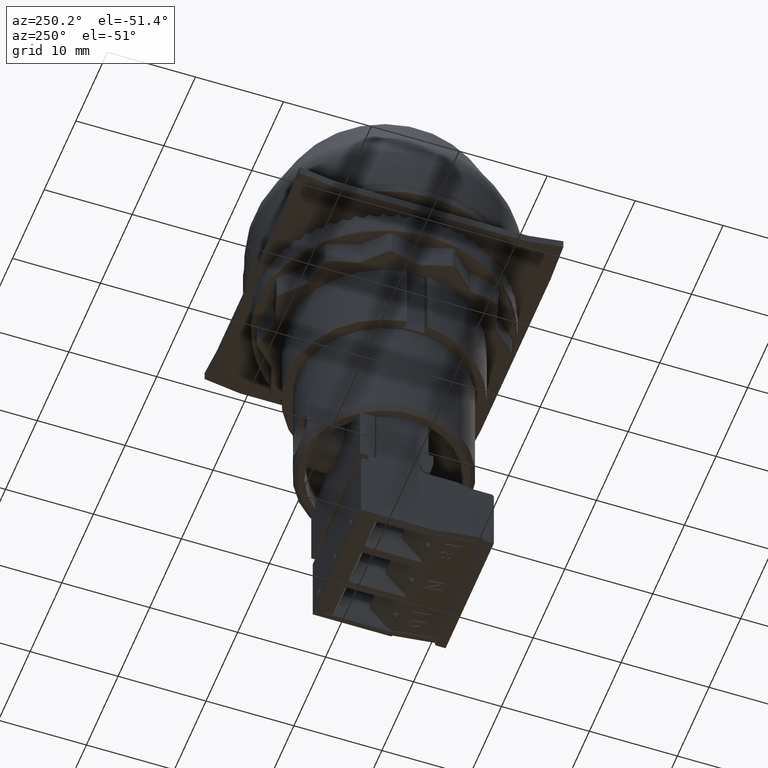
[diagram: clean part render]
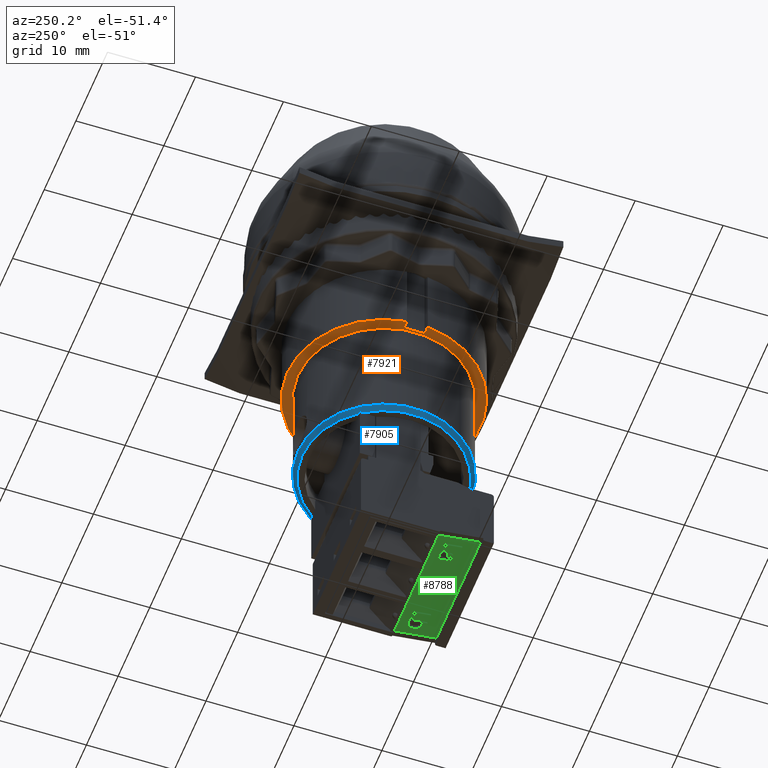
[diagram: same view with three faces highlighted in distinct colors, each labeled with its STEP entity id]
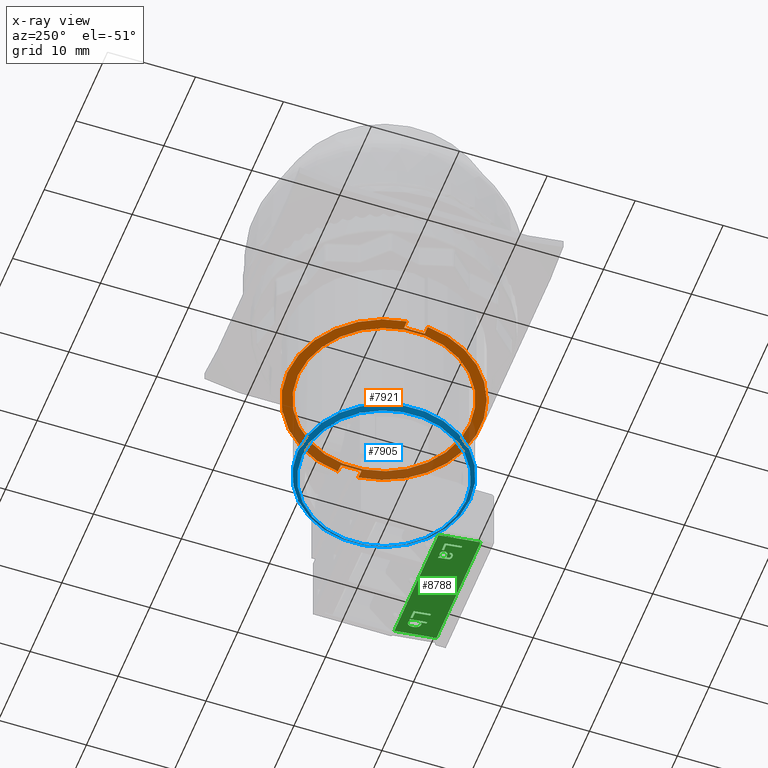
[diagram: x-ray of the same camera — body ghosted, the three highlighted faces saturated]
A machine part, auxiliary view with three faces highlighted in distinct colors.
The next image is the same camera in x-ray (body ghosted, the three faces saturated) — at least one of them is partly hidden behind the body in this view.
Their STEP definitions:

[orange] entity #7921 — the highlighted planar face has unit normal (0, 0, -1).
#3113=LINE('',#37801,#5512);
#3114=LINE('',#37803,#5513);
#3118=LINE('',#37810,#5517);
#3121=LINE('',#37816,#5520);
#3122=LINE('',#37818,#5521);
#3126=LINE('',#37825,#5525);
#5512=VECTOR('',#30555,1.);
#5513=VECTOR('',#30558,1.);
#5517=VECTOR('',#30564,1.);
#5520=VECTOR('',#30569,1.);
#5521=VECTOR('',#30572,1.);
#5525=VECTOR('',#30578,1.);
#7921=ADVANCED_FACE('',(#10179,#10180),#9421,.T.);
#9421=PLANE('',#28133);
#10179=FACE_BOUND('',#10347,.T.);
#10180=FACE_BOUND('',#10348,.T.);
#10347=EDGE_LOOP('',(#12019,#12020,#12021,#12022,#12023,#12024,#12025,#12026));
#10348=EDGE_LOOP('',(#12027));
#12019=ORIENTED_EDGE('',*,*,#22973,.T.);
#12020=ORIENTED_EDGE('',*,*,#22978,.T.);
#12021=ORIENTED_EDGE('',*,*,#22974,.T.);
#12022=ORIENTED_EDGE('',*,*,#22963,.F.);
#12023=ORIENTED_EDGE('',*,*,#22981,.T.);
#12024=ORIENTED_EDGE('',*,*,#22986,.T.);
#12025=ORIENTED_EDGE('',*,*,#22982,.T.);
#12026=ORIENTED_EDGE('',*,*,#22961,.F.);
#12027=ORIENTED_EDGE('',*,*,#22941,.T.);
#20255=VERTEX_POINT('',#37705);
#20269=VERTEX_POINT('',#37775);
#20270=VERTEX_POINT('',#37777);
#20271=VERTEX_POINT('',#37781);
#20272=VERTEX_POINT('',#37782);
#20280=VERTEX_POINT('',#37800);
#20281=VERTEX_POINT('',#37804);
#20284=VERTEX_POINT('',#37815);
#20285=VERTEX_POINT('',#37819);
#22941=EDGE_CURVE('',#20255,#20255,#27080,.T.);
#22961=EDGE_CURVE('',#20269,#20270,#27094,.T.);
#22963=EDGE_CURVE('',#20271,#20272,#27095,.T.);
#22973=EDGE_CURVE('',#20269,#20280,#3113,.T.);
#22974=EDGE_CURVE('',#20281,#20272,#3114,.T.);
#22978=EDGE_CURVE('',#20280,#20281,#3118,.T.);
#22981=EDGE_CURVE('',#20271,#20284,#3121,.T.);
#22982=EDGE_CURVE('',#20285,#20270,#3122,.T.);
#22986=EDGE_CURVE('',#20284,#20285,#3126,.T.);
#27080=CIRCLE('',#28097,9.80000000000001);
#27094=CIRCLE('',#28119,11.0000000000001);
#27095=CIRCLE('',#28121,11.0000000000001);
#28097=AXIS2_PLACEMENT_3D('',#37704,#30486,#30487);
#28119=AXIS2_PLACEMENT_3D('',#37776,#30534,#30535);
#28121=AXIS2_PLACEMENT_3D('',#37780,#30539,#30540);
#28133=AXIS2_PLACEMENT_3D('',#37828,#30583,#30584);
#30486=DIRECTION('',(0.,0.,1.));
#30487=DIRECTION('',(0.,-1.,0.));
#30534=DIRECTION('',(0.,0.,1.));
#30535=DIRECTION('',(0.,-1.,0.));
#30539=DIRECTION('',(0.,0.,1.));
#30540=DIRECTION('',(0.,-1.,0.));
#30555=DIRECTION('',(1.,0.,0.));
#30558=DIRECTION('',(-1.,0.,0.));
#30564=DIRECTION('',(0.,1.,0.));
#30569=DIRECTION('',(-1.,0.,0.));
#30572=DIRECTION('',(1.,0.,0.));
#30578=DIRECTION('',(0.,-1.,0.));
#30583=DIRECTION('',(0.,0.,-1.));
#30584=DIRECTION('',(-1.,0.,0.));
#37704=CARTESIAN_POINT('',(-1.77184302810665,-12.4,13.5000000000006));
#37705=CARTESIAN_POINT('',(-1.77184302810665,-22.2,13.5000000000006));
#37775=CARTESIAN_POINT('',(-12.723494547279,-13.4302082326455,13.5000000000006));
#37776=CARTESIAN_POINT('',(-1.77184302810665,-12.4,13.5000000000006));
#37777=CARTESIAN_POINT('',(9.17980849106573,-13.4302082326455,13.5000000000006));
#37780=CARTESIAN_POINT('',(-1.77184302810665,-12.4,13.5000000000006));
#37781=CARTESIAN_POINT('',(9.1500933300493,-11.0918309786605,13.5000000000006));
#37782=CARTESIAN_POINT('',(-12.6937793862626,-11.0918309786605,13.5000000000006));
#37800=CARTESIAN_POINT('',(-11.7718430281066,-13.4302082326455,13.5000000000006));
#37801=CARTESIAN_POINT('',(-12.723494547279,-13.4302082326455,13.5000000000006));
#37803=CARTESIAN_POINT('',(-11.7718430281066,-11.0918309786605,13.5000000000006));
#37804=CARTESIAN_POINT('',(-11.7718430281066,-11.0918309786605,13.5000000000006));
#37810=CARTESIAN_POINT('',(-11.7718430281066,-13.4302082326455,13.5000000000006));
#37815=CARTESIAN_POINT('',(8.22815697189336,-11.0918309786605,13.5000000000006));
#37816=CARTESIAN_POINT('',(9.1500933300493,-11.0918309786605,13.5000000000006));
#37818=CARTESIAN_POINT('',(8.22815697189335,-13.4302082326455,13.5000000000006));
#37819=CARTESIAN_POINT('',(8.22815697189335,-13.4302082326455,13.5000000000006));
#37825=CARTESIAN_POINT('',(8.22815697189336,-11.0918309786605,13.5000000000006));
#37828=CARTESIAN_POINT('',(-1.77184302810665,-22.8,13.5000000000006));

[blue] entity #7905 — the highlighted conical surface has half-angle 45 deg.
#541=CONICAL_SURFACE('',#28101,9.55000000000001,45.);
#3083=(
BOUNDED_CURVE()
B_SPLINE_CURVE(2,(#37607,#37608,#37609),.UNSPECIFIED.,.F.,.F.)
B_SPLINE_CURVE_WITH_KNOTS((3,3),(0.,1.),.UNSPECIFIED.)
CURVE()
GEOMETRIC_REPRESENTATION_ITEM()
RATIONAL_B_SPLINE_CURVE((1.00014362102614,1.00008632788389,1.))
REPRESENTATION_ITEM('')
);
#3084=(
BOUNDED_CURVE()
B_SPLINE_CURVE(2,(#37627,#37628,#37629),.UNSPECIFIED.,.F.,.F.)
B_SPLINE_CURVE_WITH_KNOTS((3,3),(0.,1.),.UNSPECIFIED.)
CURVE()
GEOMETRIC_REPRESENTATION_ITEM()
RATIONAL_B_SPLINE_CURVE((1.,1.00008632788362,1.0001436210257))
REPRESENTATION_ITEM('')
);
#3085=(
BOUNDED_CURVE()
B_SPLINE_CURVE(2,(#37639,#37640,#37641),.UNSPECIFIED.,.F.,.F.)
B_SPLINE_CURVE_WITH_KNOTS((3,3),(0.,1.),.UNSPECIFIED.)
CURVE()
GEOMETRIC_REPRESENTATION_ITEM()
RATIONAL_B_SPLINE_CURVE((1.00026849571093,1.00016230959023,1.))
REPRESENTATION_ITEM('')
);
#3086=(
BOUNDED_CURVE()
B_SPLINE_CURVE(2,(#37710,#37711,#37712),.UNSPECIFIED.,.F.,.F.)
B_SPLINE_CURVE_WITH_KNOTS((3,3),(0.,1.),.UNSPECIFIED.)
CURVE()
GEOMETRIC_REPRESENTATION_ITEM()
RATIONAL_B_SPLINE_CURVE((1.,1.00016230959019,1.00026849571086))
REPRESENTATION_ITEM('')
);
#7905=ADVANCED_FACE('',(#10165,#10166),#541,.T.);
#10165=FACE_BOUND('',#10324,.T.);
#10166=FACE_BOUND('',#10325,.T.);
#10324=EDGE_LOOP('',(#11946,#11947,#11948,#11949,#11950,#11951));
#10325=EDGE_LOOP('',(#11952));
#11946=ORIENTED_EDGE('',*,*,#22942,.T.);
#11947=ORIENTED_EDGE('',*,*,#22933,.T.);
#11948=ORIENTED_EDGE('',*,*,#22938,.T.);
#11949=ORIENTED_EDGE('',*,*,#22943,.T.);
#11950=ORIENTED_EDGE('',*,*,#22944,.T.);
#11951=ORIENTED_EDGE('',*,*,#22925,.T.);
#11952=ORIENTED_EDGE('',*,*,#22939,.F.);
#20236=VERTEX_POINT('',#37599);
#20240=VERTEX_POINT('',#37606);
#20248=VERTEX_POINT('',#37626);
#20249=VERTEX_POINT('',#37630);
#20252=VERTEX_POINT('',#37638);
#20253=VERTEX_POINT('',#37644);
#20256=VERTEX_POINT('',#37709);
#22925=EDGE_CURVE('',#20236,#20240,#3083,.T.);
#22933=EDGE_CURVE('',#20249,#20248,#3084,.T.);
#22938=EDGE_CURVE('',#20248,#20252,#3085,.T.);
#22939=EDGE_CURVE('',#20253,#20253,#27079,.T.);
#22942=EDGE_CURVE('',#20240,#20249,#27081,.T.);
#22943=EDGE_CURVE('',#20252,#20256,#27082,.T.);
#22944=EDGE_CURVE('',#20256,#20236,#3086,.T.);
#27079=CIRCLE('',#28096,9.80000000000001);
#27081=CIRCLE('',#28099,9.30000000000001);
#27082=CIRCLE('',#28100,9.30000000000001);
#28096=AXIS2_PLACEMENT_3D('',#37643,#30484,#30485);
#28099=AXIS2_PLACEMENT_3D('',#37707,#30490,#30491);
#28100=AXIS2_PLACEMENT_3D('',#37708,#30492,#30493);
#28101=AXIS2_PLACEMENT_3D('',#37713,#30494,#30495);
#30484=DIRECTION('',(0.,0.,1.));
#30485=DIRECTION('',(0.,-1.,0.));
#30490=DIRECTION('',(0.,0.,1.));
#30491=DIRECTION('',(0.,-1.,0.));
#30492=DIRECTION('',(0.,0.,1.));
#30493=DIRECTION('',(0.,-1.,0.));
#30494=DIRECTION('',(0.,0.,1.));
#30495=DIRECTION('',(0.,-1.,-8.26401437994746E-017));
#37599=CARTESIAN_POINT('',(5.82815697189335,-6.9,0.0813645062971123));
#37606=CARTESIAN_POINT('',(5.72749027559444,-6.9,6.10622663543836E-013));
#37607=CARTESIAN_POINT('',(5.82815697189335,-6.9,0.0813645062971123));
#37608=CARTESIAN_POINT('',(5.77760440271099,-6.9,0.0404110260727716));
#37609=CARTESIAN_POINT('',(5.72749027559443,-6.9,6.10622663543836E-013));
#37626=CARTESIAN_POINT('',(-9.37184302810665,-6.9,0.0813645062971123));
#37627=CARTESIAN_POINT('',(-9.27117633180773,-6.9,6.10622663543836E-013));
#37628=CARTESIAN_POINT('',(-9.32129045892427,-6.9,0.040411026072751));
#37629=CARTESIAN_POINT('',(-9.37184302810665,-6.9,0.0813645062971132));
#37630=CARTESIAN_POINT('',(-9.27117633180773,-6.9,6.10622663543836E-013));
#37638=CARTESIAN_POINT('',(-9.37184302810665,-7.03996268669702,6.10622663543836E-013));
#37639=CARTESIAN_POINT('',(-9.37184302810665,-6.9,0.0813645062971103));
#37640=CARTESIAN_POINT('',(-9.37184302810665,-6.97028613893518,0.0401579457926155));
#37641=CARTESIAN_POINT('',(-9.37184302810665,-7.03996268669702,6.10622663543836E-013));
#37643=CARTESIAN_POINT('',(-1.77184302810665,-12.4,0.500000000000611));
#37644=CARTESIAN_POINT('',(-1.77184302810665,-22.2,0.500000000000611));
#37707=CARTESIAN_POINT('',(-1.77184302810665,-12.4,6.10622663543836E-013));
#37708=CARTESIAN_POINT('',(-1.77184302810665,-12.4,6.10622663543836E-013));
#37709=CARTESIAN_POINT('',(5.82815697189335,-7.03996268669702,6.10622663543836E-013));
#37710=CARTESIAN_POINT('',(5.82815697189335,-7.03996268669702,6.10622663543836E-013));
#37711=CARTESIAN_POINT('',(5.82815697189335,-6.97028613893518,0.0401579457926137));
#37712=CARTESIAN_POINT('',(5.82815697189335,-6.9,0.0813645062971091));
#37713=CARTESIAN_POINT('',(-1.77184302810665,-12.4,0.250000000000611));

[green] entity #8788 — the highlighted planar face has unit normal (0, -0.1644, -0.9864).
#1418=B_SPLINE_CURVE_WITH_KNOTS('',3,(#51803,#51804,#51805,#51806,#51807,
#51808,#51809,#51810,#51811,#51812,#51813,#51814,#51815,#51816,#51817,#51818,
#51819,#51820),.UNSPECIFIED.,.F.,.F.,(4,2,2,2,2,2,2,2,4),(0.,0.141139491069957,
0.219350546631016,0.296903946739564,0.374250461463833,0.451191186124659,
0.634491147816621,0.817791109508583,1.),.UNSPECIFIED.);
#1419=B_SPLINE_CURVE_WITH_KNOTS('',3,(#51860,#51861,#51862,#51863),.UNSPECIFIED.,
 .F.,.F.,(4,4),(0.,1.),.UNSPECIFIED.);
#1420=B_SPLINE_CURVE_WITH_KNOTS('',3,(#51866,#51867,#51868,#51869,#51870,
#51871,#51872,#51873,#51874,#51875,#51876,#51877,#51878,#51879,#51880,#51881),
 .UNSPECIFIED.,.F.,.F.,(4,2,2,2,2,2,2,4),(0.,0.118743004700795,0.236733175634041,
0.353851373511062,0.554989148125957,0.756126922740852,0.878361776124181,
1.),.UNSPECIFIED.);
#1421=B_SPLINE_CURVE_WITH_KNOTS('',3,(#51883,#51884,#51885,#51886,#51887,
#51888),.UNSPECIFIED.,.F.,.F.,(4,2,4),(0.,0.670613947686778,1.),.UNSPECIFIED.);
#1422=B_SPLINE_CURVE_WITH_KNOTS('',3,(#51890,#51891,#51892,#51893,#51894,
#51895,#51896,#51897,#51898,#51899,#51900,#51901),.UNSPECIFIED.,.F.,.F.,
(4,2,2,2,2,4),(0.,0.254566174839139,0.509132349678278,0.781720908576822,
0.982578664064817,1.),.UNSPECIFIED.);
#1423=B_SPLINE_CURVE_WITH_KNOTS('',3,(#51905,#51906,#51907,#51908,#51909,
#51910,#51911,#51912,#51913,#51914,#51915,#51916,#51917,#51918),.UNSPECIFIED.,
 .F.,.F.,(4,2,2,2,2,2,4),(0.,0.166571548220634,0.331768206242466,0.497845464514662,
0.664608992449138,0.832571713480451,1.),.UNSPECIFIED.);
#1424=B_SPLINE_CURVE_WITH_KNOTS('',3,(#51920,#51921,#51922,#51923,#51924,
#51925,#51926,#51927,#51928,#51929),.UNSPECIFIED.,.F.,.F.,(4,2,2,2,4),(0.,
0.338361049612275,0.677009077272557,0.83863080561154,1.),.UNSPECIFIED.);
#4326=LINE('',#51823,#6725);
#4327=LINE('',#51825,#6726);
#4328=LINE('',#51827,#6727);
#4329=LINE('',#51829,#6728);
#4330=LINE('',#51831,#6729);
#4331=LINE('',#51832,#6730);
#4332=LINE('',#51835,#6731);
#4333=LINE('',#51837,#6732);
#4334=LINE('',#51839,#6733);
#4335=LINE('',#51841,#6734);
#4336=LINE('',#51843,#6735);
#4337=LINE('',#51845,#6736);
#4338=LINE('',#51847,#6737);
#4339=LINE('',#51849,#6738);
#4340=LINE('',#51851,#6739);
#4341=LINE('',#51852,#6740);
#4342=LINE('',#51855,#6741);
#4343=LINE('',#51857,#6742);
#4344=LINE('',#51859,#6743);
#4345=LINE('',#51903,#6744);
#4346=LINE('',#51931,#6745);
#4347=LINE('',#51932,#6746);
#4348=LINE('',#51935,#6747);
#4349=LINE('',#51937,#6748);
#4350=LINE('',#51939,#6749);
#4351=LINE('',#51941,#6750);
#4352=LINE('',#51943,#6751);
#4353=LINE('',#51944,#6752);
#4354=LINE('',#51947,#6753);
#4355=LINE('',#51949,#6754);
#4356=LINE('',#51951,#6755);
#4357=LINE('',#51953,#6756);
#4358=LINE('',#51955,#6757);
#6725=VECTOR('',#34516,1.);
#6726=VECTOR('',#34517,1.);
#6727=VECTOR('',#34518,1.);
#6728=VECTOR('',#34519,1.);
#6729=VECTOR('',#34520,1.);
#6730=VECTOR('',#34521,1.);
#6731=VECTOR('',#34522,1.);
#6732=VECTOR('',#34523,1.);
#6733=VECTOR('',#34524,1.);
#6734=VECTOR('',#34525,1.);
#6735=VECTOR('',#34526,1.);
#6736=VECTOR('',#34527,1.);
#6737=VECTOR('',#34528,1.);
#6738=VECTOR('',#34529,1.);
#6739=VECTOR('',#34530,1.);
#6740=VECTOR('',#34531,1.);
#6741=VECTOR('',#34532,1.);
#6742=VECTOR('',#34533,1.);
#6743=VECTOR('',#34534,1.);
#6744=VECTOR('',#34535,1.);
#6745=VECTOR('',#34536,1.);
#6746=VECTOR('',#34537,1.);
#6747=VECTOR('',#34538,1.);
#6748=VECTOR('',#34539,1.);
#6749=VECTOR('',#34540,1.);
#6750=VECTOR('',#34541,1.);
#6751=VECTOR('',#34542,1.);
#6752=VECTOR('',#34543,1.);
#6753=VECTOR('',#34544,1.);
#6754=VECTOR('',#34545,1.);
#6755=VECTOR('',#34546,1.);
#6756=VECTOR('',#34547,1.);
#6757=VECTOR('',#34548,1.);
#8788=ADVANCED_FACE('',(#10228,#10229,#10230,#10231,#10232,#10233),#9791,
 .T.);
#9791=PLANE('',#29500);
#10228=FACE_BOUND('',#11240,.T.);
#10229=FACE_BOUND('',#11241,.T.);
#10230=FACE_BOUND('',#11242,.T.);
#10231=FACE_BOUND('',#11243,.T.);
#10232=FACE_BOUND('',#11244,.T.);
#10233=FACE_BOUND('',#11245,.T.);
#11240=EDGE_LOOP('',(#16788,#16789,#16790,#16791,#16792,#16793));
#11241=EDGE_LOOP('',(#16794,#16795,#16796,#16797,#16798,#16799,#16800,#16801,
#16802,#16803));
#11242=EDGE_LOOP('',(#16804,#16805,#16806,#16807));
#11243=EDGE_LOOP('',(#16808,#16809,#16810,#16811,#16812,#16813,#16814,#16815));
#11244=EDGE_LOOP('',(#16816,#16817,#16818,#16819,#16820,#16821));
#11245=EDGE_LOOP('',(#16822,#16823,#16824,#16825,#16826,#16827));
#16788=ORIENTED_EDGE('',*,*,#25352,.T.);
#16789=ORIENTED_EDGE('',*,*,#25353,.T.);
#16790=ORIENTED_EDGE('',*,*,#25354,.T.);
#16791=ORIENTED_EDGE('',*,*,#25355,.T.);
#16792=ORIENTED_EDGE('',*,*,#25356,.T.);
#16793=ORIENTED_EDGE('',*,*,#25357,.T.);
#16794=ORIENTED_EDGE('',*,*,#25358,.T.);
#16795=ORIENTED_EDGE('',*,*,#25359,.T.);
#16796=ORIENTED_EDGE('',*,*,#25360,.T.);
#16797=ORIENTED_EDGE('',*,*,#25361,.T.);
#16798=ORIENTED_EDGE('',*,*,#25362,.T.);
#16799=ORIENTED_EDGE('',*,*,#25363,.T.);
#16800=ORIENTED_EDGE('',*,*,#25364,.T.);
#16801=ORIENTED_EDGE('',*,*,#25365,.T.);
#16802=ORIENTED_EDGE('',*,*,#25366,.T.);
#16803=ORIENTED_EDGE('',*,*,#25367,.T.);
#16804=ORIENTED_EDGE('',*,*,#25368,.F.);
#16805=ORIENTED_EDGE('',*,*,#25369,.T.);
#16806=ORIENTED_EDGE('',*,*,#25370,.F.);
#16807=ORIENTED_EDGE('',*,*,#25371,.F.);
#16808=ORIENTED_EDGE('',*,*,#25372,.F.);
#16809=ORIENTED_EDGE('',*,*,#25373,.F.);
#16810=ORIENTED_EDGE('',*,*,#25374,.F.);
#16811=ORIENTED_EDGE('',*,*,#25375,.F.);
#16812=ORIENTED_EDGE('',*,*,#25376,.F.);
#16813=ORIENTED_EDGE('',*,*,#25377,.F.);
#16814=ORIENTED_EDGE('',*,*,#25378,.F.);
#16815=ORIENTED_EDGE('',*,*,#25379,.F.);
#16816=ORIENTED_EDGE('',*,*,#25380,.T.);
#16817=ORIENTED_EDGE('',*,*,#25381,.T.);
#16818=ORIENTED_EDGE('',*,*,#25382,.T.);
#16819=ORIENTED_EDGE('',*,*,#25383,.T.);
#16820=ORIENTED_EDGE('',*,*,#25384,.T.);
#16821=ORIENTED_EDGE('',*,*,#25385,.T.);
#16822=ORIENTED_EDGE('',*,*,#25386,.T.);
#16823=ORIENTED_EDGE('',*,*,#25387,.T.);
#16824=ORIENTED_EDGE('',*,*,#25388,.T.);
#16825=ORIENTED_EDGE('',*,*,#25389,.T.);
#16826=ORIENTED_EDGE('',*,*,#25390,.T.);
#16827=ORIENTED_EDGE('',*,*,#25391,.T.);
#21794=VERTEX_POINT('',#51821);
#21795=VERTEX_POINT('',#51822);
#21796=VERTEX_POINT('',#51824);
#21797=VERTEX_POINT('',#51826);
#21798=VERTEX_POINT('',#51828);
#21799=VERTEX_POINT('',#51830);
#21800=VERTEX_POINT('',#51833);
#21801=VERTEX_POINT('',#51834);
#21802=VERTEX_POINT('',#51836);
#21803=VERTEX_POINT('',#51838);
#21804=VERTEX_POINT('',#51840);
#21805=VERTEX_POINT('',#51842);
#21806=VERTEX_POINT('',#51844);
#21807=VERTEX_POINT('',#51846);
#21808=VERTEX_POINT('',#51848);
#21809=VERTEX_POINT('',#51850);
#21810=VERTEX_POINT('',#51853);
#21811=VERTEX_POINT('',#51854);
#21812=VERTEX_POINT('',#51856);
#21813=VERTEX_POINT('',#51858);
#21814=VERTEX_POINT('',#51864);
#21815=VERTEX_POINT('',#51865);
#21816=VERTEX_POINT('',#51882);
#21817=VERTEX_POINT('',#51889);
#21818=VERTEX_POINT('',#51902);
#21819=VERTEX_POINT('',#51904);
#21820=VERTEX_POINT('',#51919);
#21821=VERTEX_POINT('',#51930);
#21822=VERTEX_POINT('',#51933);
#21823=VERTEX_POINT('',#51934);
#21824=VERTEX_POINT('',#51936);
#21825=VERTEX_POINT('',#51938);
#21826=VERTEX_POINT('',#51940);
#21827=VERTEX_POINT('',#51942);
#21828=VERTEX_POINT('',#51945);
#21829=VERTEX_POINT('',#51946);
#21830=VERTEX_POINT('',#51948);
#21831=VERTEX_POINT('',#51950);
#21832=VERTEX_POINT('',#51952);
#21833=VERTEX_POINT('',#51954);
#25352=EDGE_CURVE('',#21794,#21795,#1418,.T.);
#25353=EDGE_CURVE('',#21795,#21796,#4326,.T.);
#25354=EDGE_CURVE('',#21796,#21797,#4327,.T.);
#25355=EDGE_CURVE('',#21797,#21798,#4328,.T.);
#25356=EDGE_CURVE('',#21798,#21799,#4329,.T.);
#25357=EDGE_CURVE('',#21799,#21794,#4330,.T.);
#25358=EDGE_CURVE('',#21800,#21801,#4331,.T.);
#25359=EDGE_CURVE('',#21801,#21802,#4332,.T.);
#25360=EDGE_CURVE('',#21802,#21803,#4333,.T.);
#25361=EDGE_CURVE('',#21803,#21804,#4334,.T.);
#25362=EDGE_CURVE('',#21804,#21805,#4335,.T.);
#25363=EDGE_CURVE('',#21805,#21806,#4336,.T.);
#25364=EDGE_CURVE('',#21806,#21807,#4337,.T.);
#25365=EDGE_CURVE('',#21807,#21808,#4338,.T.);
#25366=EDGE_CURVE('',#21808,#21809,#4339,.T.);
#25367=EDGE_CURVE('',#21809,#21800,#4340,.T.);
#25368=EDGE_CURVE('',#21810,#21811,#4341,.T.);
#25369=EDGE_CURVE('',#21810,#21812,#4342,.T.);
#25370=EDGE_CURVE('',#21813,#21812,#4343,.T.);
#25371=EDGE_CURVE('',#21811,#21813,#4344,.T.);
#25372=EDGE_CURVE('',#21814,#21815,#1419,.T.);
#25373=EDGE_CURVE('',#21816,#21814,#1420,.T.);
#25374=EDGE_CURVE('',#21817,#21816,#1421,.T.);
#25375=EDGE_CURVE('',#21818,#21817,#1422,.T.);
#25376=EDGE_CURVE('',#21819,#21818,#4345,.T.);
#25377=EDGE_CURVE('',#21820,#21819,#1423,.T.);
#25378=EDGE_CURVE('',#21821,#21820,#1424,.T.);
#25379=EDGE_CURVE('',#21815,#21821,#4346,.T.);
#25380=EDGE_CURVE('',#21822,#21823,#4347,.T.);
#25381=EDGE_CURVE('',#21823,#21824,#4348,.T.);
#25382=EDGE_CURVE('',#21824,#21825,#4349,.T.);
#25383=EDGE_CURVE('',#21825,#21826,#4350,.T.);
#25384=EDGE_CURVE('',#21826,#21827,#4351,.T.);
#25385=EDGE_CURVE('',#21827,#21822,#4352,.T.);
#25386=EDGE_CURVE('',#21828,#21829,#4353,.T.);
#25387=EDGE_CURVE('',#21829,#21830,#4354,.T.);
#25388=EDGE_CURVE('',#21830,#21831,#4355,.T.);
#25389=EDGE_CURVE('',#21831,#21832,#4356,.T.);
#25390=EDGE_CURVE('',#21832,#21833,#4357,.T.);
#25391=EDGE_CURVE('',#21833,#21828,#4358,.T.);
#29500=AXIS2_PLACEMENT_3D('',#51956,#34549,#34550);
#34516=DIRECTION('',(0.,0.986393923832015,-0.164398987306129));
#34517=DIRECTION('',(-1.,0.,0.));
#34518=DIRECTION('',(0.,-0.986393923832151,0.164398987305311));
#34519=DIRECTION('',(1.,0.,0.));
#34520=DIRECTION('',(0.,0.986393923832154,-0.164398987305296));
#34521=DIRECTION('',(0.,0.986393923832144,-0.164398987305355));
#34522=DIRECTION('',(-1.,0.,0.));
#34523=DIRECTION('',(0.,-0.986393923832151,0.164398987305311));
#34524=DIRECTION('',(1.,0.,0.));
#34525=DIRECTION('',(0.455803637987173,0.877969856798267,-0.14632830946638));
#34526=DIRECTION('',(0.,-0.986393923832145,0.164398987305353));
#34527=DIRECTION('',(1.,0.,0.));
#34528=DIRECTION('',(0.,0.986393923832132,-0.16439898730543));
#34529=DIRECTION('',(-1.,0.,0.));
#34530=DIRECTION('',(-0.455450886855225,-0.878147953240234,0.146357992206704));
#34531=DIRECTION('',(1.,0.,0.));
#34532=DIRECTION('',(0.,0.986393923832144,-0.164398987305357));
#34533=DIRECTION('',(-1.,0.,0.));
#34534=DIRECTION('',(0.,0.986393923832144,-0.164398987305357));
#34535=DIRECTION('',(0.984480816950181,0.173104464480548,-0.0288507440806492));
#34536=DIRECTION('',(1.,0.,0.));
#34537=DIRECTION('',(0.,0.986393923832076,-0.164398987305765));
#34538=DIRECTION('',(-1.,0.,0.));
#34539=DIRECTION('',(0.,-0.986393923832151,0.164398987305311));
#34540=DIRECTION('',(1.,0.,0.));
#34541=DIRECTION('',(0.,0.986393923832139,-0.164398987305384));
#34542=DIRECTION('',(1.,0.,0.));
#34543=DIRECTION('',(0.,0.986393923832076,-0.164398987305765));
#34544=DIRECTION('',(-1.,0.,0.));
#34545=DIRECTION('',(0.,-0.986393923832151,0.164398987305311));
#34546=DIRECTION('',(1.,0.,0.));
#34547=DIRECTION('',(0.,0.986393923832139,-0.164398987305384));
#34548=DIRECTION('',(1.,0.,0.));
#34549=DIRECTION('',(0.,-0.164398987305406,-0.986393923832136));
#34550=DIRECTION('',(0.,-0.986393923832136,0.164398987305406));
#51803=CARTESIAN_POINT('',(3.42921611413501,-18.418761486065,-16.009373085656));
#51804=CARTESIAN_POINT('',(3.50872522047354,-18.547454476895,-15.987924253851));
#51805=CARTESIAN_POINT('',(3.61016787338822,-18.6115486331122,-15.9772418944814));
#51806=CARTESIAN_POINT('',(3.80130306498036,-18.6115486331122,-15.9772418944814));
#51807=CARTESIAN_POINT('',(3.86592869328508,-18.5938848892728,-15.980185851788));
#51808=CARTESIAN_POINT('',(3.9876161031078,-18.5225218600441,-15.9920796899928));
#51809=CARTESIAN_POINT('',(4.0378720316231,-18.472762074374,-16.0003729876045));
#51810=CARTESIAN_POINT('',(4.11688393864435,-18.344744742762,-16.0217092095398));
#51811=CARTESIAN_POINT('',(4.14753976450383,-18.2673579674415,-16.0346070054266));
#51812=CARTESIAN_POINT('',(4.1920730717861,-18.0861503383333,-16.0648082769446));
#51813=CARTESIAN_POINT('',(4.20315697189335,-17.9892801715696,-16.0809533047386));
#51814=CARTESIAN_POINT('',(4.20315697189335,-17.6410520787356,-16.1389913202109));
#51815=CARTESIAN_POINT('',(4.15615651494446,-17.4517976804562,-16.1705337199242));
#51816=CARTESIAN_POINT('',(3.96815468714891,-17.184318130888,-16.2151136448522));
#51817=CARTESIAN_POINT('',(3.85535359047158,-17.1177005826937,-16.2262165695513));
#51818=CARTESIAN_POINT('',(3.59293437250696,-17.1177005826937,-16.2262165695513));
#51819=CARTESIAN_POINT('',(3.49031670816856,-17.1878508796559,-16.2145248533909));
#51820=CARTESIAN_POINT('',(3.41589931799949,-17.3291608303712,-16.1909731949383));
#51821=CARTESIAN_POINT('',(3.42921611413501,-18.418761486065,-16.009373085656));
#51822=CARTESIAN_POINT('',(3.41589931799949,-17.3291608303712,-16.1909731949383));
#51823=CARTESIAN_POINT('',(3.41589931799949,-17.2395804151856,-16.2059032641359));
#51824=CARTESIAN_POINT('',(3.41589931799949,-17.15,-16.2208333333335));
#51825=CARTESIAN_POINT('',(3.32855680216947,-17.15,-16.2208333333335));
#51826=CARTESIAN_POINT('',(3.24121428633946,-17.15,-16.2208333333335));
#51827=CARTESIAN_POINT('',(3.24121428633946,-18.1363939238321,-16.0564343460281));
#51828=CARTESIAN_POINT('',(3.24121428633946,-19.1227878476643,-15.8920353587227));
#51829=CARTESIAN_POINT('',(3.33521520023724,-19.1227878476643,-15.8920353587227));
#51830=CARTESIAN_POINT('',(3.42921611413501,-19.1227878476643,-15.8920353587227));
#51831=CARTESIAN_POINT('',(3.42921611413501,-18.7707746668646,-15.9507042221894));
#51832=CARTESIAN_POINT('',(-2.24648073291767,-17.9251860153523,-16.0916356641081));
#51833=CARTESIAN_POINT('',(-2.24648073291767,-18.7003720307047,-15.9624379948827));
#51834=CARTESIAN_POINT('',(-2.24648073291767,-17.15,-16.2208333333335));
#51835=CARTESIAN_POINT('',(-2.34361501061204,-17.15,-16.2208333333335));
#51836=CARTESIAN_POINT('',(-2.4407492883064,-17.15,-16.2208333333335));
#51837=CARTESIAN_POINT('',(-2.4407492883064,-18.1363939238321,-16.0564343460281));
#51838=CARTESIAN_POINT('',(-2.4407492883064,-19.1227878476643,-15.8920353587227));
#51839=CARTESIAN_POINT('',(-2.33676077730699,-19.1227878476643,-15.8920353587227));
#51840=CARTESIAN_POINT('',(-2.23277226630758,-19.1227878476643,-15.8920353587227));
#51841=CARTESIAN_POINT('',(-1.83072252415731,-18.3483588499051,-16.0211068583493));
#51842=CARTESIAN_POINT('',(-1.42867278200704,-17.5739298521458,-16.1501783579759));
#51843=CARTESIAN_POINT('',(-1.42867278200704,-18.3483588499051,-16.0211068583493));
#51844=CARTESIAN_POINT('',(-1.42867278200704,-19.1227878476643,-15.8920353587227));
#51845=CARTESIAN_POINT('',(-1.33153850431267,-19.1227878476643,-15.8920353587227));
#51846=CARTESIAN_POINT('',(-1.23440422661831,-19.1227878476643,-15.8920353587227));
#51847=CARTESIAN_POINT('',(-1.23440422661831,-18.1363939238321,-16.0564343460281));
#51848=CARTESIAN_POINT('',(-1.23440422661831,-17.15,-16.2208333333335));
#51849=CARTESIAN_POINT('',(-1.33839273761772,-17.15,-16.2208333333335));
#51850=CARTESIAN_POINT('',(-1.44238124861713,-17.15,-16.2208333333335));
#51851=CARTESIAN_POINT('',(-1.8444309907674,-17.9251860153523,-16.0916356641081));
#51852=CARTESIAN_POINT('',(-8.76684302810665,-20.875,-15.6));
#51853=CARTESIAN_POINT('',(-8.76684302810665,-20.875,-15.6));
#51854=CARTESIAN_POINT('',(5.17315697189335,-20.875,-15.6));
#51855=CARTESIAN_POINT('',(-8.76684302810665,-20.875,-15.6));
#51856=CARTESIAN_POINT('',(-8.76684302810665,-16.075,-16.4));
#51857=CARTESIAN_POINT('',(5.17315697189335,-16.075,-16.4));
#51858=CARTESIAN_POINT('',(5.17315697189335,-16.075,-16.4));
#51859=CARTESIAN_POINT('',(5.17315697189335,-20.875,-15.6));
#51860=CARTESIAN_POINT('',(-5.89919957879534,-17.3261327599987,-16.1914778733337));
#51861=CARTESIAN_POINT('',(-5.8937161921513,-17.2590105334089,-16.2026649110987));
#51862=CARTESIAN_POINT('',(-5.88118273696493,-17.1999631611458,-16.2125061398092));
#51863=CARTESIAN_POINT('',(-5.86159921323623,-17.15,-16.2208333333335));
#51864=CARTESIAN_POINT('',(-5.89919957879534,-17.3261327599987,-16.1914778733337));
#51865=CARTESIAN_POINT('',(-5.86159921323623,-17.15,-16.2208333333335));
#51866=CARTESIAN_POINT('',(-6.41737961665682,-17.9372982968422,-16.0896169505265));
#51867=CARTESIAN_POINT('',(-6.4675134374023,-17.9191298746074,-16.0926450208989));
#51868=CARTESIAN_POINT('',(-6.51230063937769,-17.8926041058421,-16.0970659823598));
#51869=CARTESIAN_POINT('',(-6.59245631879142,-17.8227363010838,-16.1087106164862));
#51870=CARTESIAN_POINT('',(-6.62478125510541,-17.7762295597957,-16.1164617400342));
#51871=CARTESIAN_POINT('',(-6.6743154479774,-17.6607345361566,-16.1357109106407));
#51872=CARTESIAN_POINT('',(-6.68684890316377,-17.5966403799393,-16.1463932700103));
#51873=CARTESIAN_POINT('',(-6.68684890316377,-17.40738598166,-16.1779356697235));
#51874=CARTESIAN_POINT('',(-6.65394858329955,-17.3094783729501,-16.1942536045085));
#51875=CARTESIAN_POINT('',(-6.52313064479181,-17.1560561407449,-16.2198239765427));
#51876=CARTESIAN_POINT('',(-6.42952140136861,-17.1177005826937,-16.2262165695513));
#51877=CARTESIAN_POINT('',(-6.23368616408159,-17.1177005826937,-16.2262165695513));
#51878=CARTESIAN_POINT('',(-6.16467555448694,-17.133192136743,-16.2236346438764));
#51879=CARTESIAN_POINT('',(-6.03589257442169,-17.1959257339825,-16.2131790443365));
#51880=CARTESIAN_POINT('',(-5.96891692326952,-17.2499263222915,-16.2041789462849));
#51881=CARTESIAN_POINT('',(-5.89919957879534,-17.3261327599987,-16.1914778733337));
#51882=CARTESIAN_POINT('',(-6.41737961665682,-17.9372982968422,-16.0896169505265));
#51883=CARTESIAN_POINT('',(-5.9148663977783,-18.0569070765548,-16.0696821539077));
#51884=CARTESIAN_POINT('',(-5.98654209462535,-18.0246076592484,-16.0750653901254));
#51885=CARTESIAN_POINT('',(-6.09862614485659,-17.9972676554384,-16.0796220574271));
#51886=CARTESIAN_POINT('',(-6.32455371418277,-17.9620275382174,-16.0854954102973));
#51887=CARTESIAN_POINT('',(-6.38017092157228,-17.9499152567275,-16.0875141238789));
#51888=CARTESIAN_POINT('',(-6.41737961665682,-17.9372982968422,-16.0896169505265));
#51889=CARTESIAN_POINT('',(-5.9148663977783,-18.0569070765548,-16.0696821539077));
#51890=CARTESIAN_POINT('',(-6.47064680119889,-18.1391696550069,-16.0559717241657));
#51891=CARTESIAN_POINT('',(-6.45027993652104,-18.2406100124846,-16.0390649979194));
#51892=CARTESIAN_POINT('',(-6.41933796902969,-18.3112649878423,-16.0272891686931));
#51893=CARTESIAN_POINT('',(-6.33473714652169,-18.3910041743173,-16.0139993042806));
#51894=CARTESIAN_POINT('',(-6.2697198477424,-18.4106866317384,-16.0107188947104));
#51895=CARTESIAN_POINT('',(-6.08641806564174,-18.4106866317384,-16.0107188947104));
#51896=CARTESIAN_POINT('',(-6.0147976005478,-18.3837215600406,-16.0152130733267));
#51897=CARTESIAN_POINT('',(-5.93170822818499,-18.2885544600488,-16.0310742566587));
#51898=CARTESIAN_POINT('',(-5.91369138635458,-18.218908841482,-16.0426818597532));
#51899=CARTESIAN_POINT('',(-5.91369138635458,-18.1114123432593,-16.0605979427903));
#51900=CARTESIAN_POINT('',(-5.91408305682915,-18.090215850652,-16.0641306915582));
#51901=CARTESIAN_POINT('',(-5.9148663977783,-18.0569070765548,-16.0696821539077));
#51902=CARTESIAN_POINT('',(-6.47064680119889,-18.1391696550069,-16.0559717241657));
#51903=CARTESIAN_POINT('',(-6.56249352748651,-18.15531936366,-16.0532801060568));
#51904=CARTESIAN_POINT('',(-6.65434025377412,-18.1714690723132,-16.0505884879479));
#51905=CARTESIAN_POINT('',(-5.73430630899966,-18.2951152791891,-16.029980786802));
#51906=CARTESIAN_POINT('',(-5.74527308228773,-18.3617328273835,-16.0188778621029));
#51907=CARTESIAN_POINT('',(-5.76462516200831,-18.4163815457167,-16.0097697423807));
#51908=CARTESIAN_POINT('',(-5.82047381340595,-18.5035474564941,-15.9952420905844));
#51909=CARTESIAN_POINT('',(-5.86387323542733,-18.5395321535999,-15.9892446410668));
#51910=CARTESIAN_POINT('',(-5.98262538987961,-18.5969129596453,-15.9796811733926));
#51911=CARTESIAN_POINT('',(-6.05939280289613,-18.6115486331122,-15.9772418944814));
#51912=CARTESIAN_POINT('',(-6.24935298306455,-18.6115486331122,-15.9772418944814));
#51913=CARTESIAN_POINT('',(-6.3336877959538,-18.594652830239,-15.980057861627));
#51914=CARTESIAN_POINT('',(-6.4780885402158,-18.5272673410785,-15.991288776487));
#51915=CARTESIAN_POINT('',(-6.53319155555524,-18.4790163612003,-15.9993306064668));
#51916=CARTESIAN_POINT('',(-6.61008149014726,-18.3546673298477,-16.0200554450255));
#51917=CARTESIAN_POINT('',(-6.63749842336744,-18.272909429791,-16.0336817617016));
#51918=CARTESIAN_POINT('',(-6.65434025377412,-18.1714690723132,-16.0505884879479));
#51919=CARTESIAN_POINT('',(-5.73430630899966,-18.2951152791891,-16.029980786802));
#51920=CARTESIAN_POINT('',(-5.66537230547463,-17.15,-16.2208333333335));
#51921=CARTESIAN_POINT('',(-5.68887253394907,-17.2045052667045,-16.2117491222161));
#51922=CARTESIAN_POINT('',(-5.70454632305204,-17.2620890695448,-16.2021518217427));
#51923=CARTESIAN_POINT('',(-5.72098951286414,-17.3811427050986,-16.1823095491504));
#51924=CARTESIAN_POINT('',(-5.72490621760988,-17.5234620126046,-16.1585896645661));
#51925=CARTESIAN_POINT('',(-5.72490621760988,-17.8567179797082,-16.1030470033821));
#51926=CARTESIAN_POINT('',(-5.72490621760988,-17.9643827040627,-16.0851028826564));
#51927=CARTESIAN_POINT('',(-5.72490621760988,-18.1795439266398,-16.0492426788935));
#51928=CARTESIAN_POINT('',(-5.72803958140648,-18.2537316507653,-16.0368780582059));
#51929=CARTESIAN_POINT('',(-5.73430630899966,-18.2951152791891,-16.029980786802));
#51930=CARTESIAN_POINT('',(-5.66537230547463,-17.15,-16.2208333333335));
#51931=CARTESIAN_POINT('',(-5.76348575935543,-17.15,-16.2208333333335));
#51932=CARTESIAN_POINT('',(-6.83999205872223,-17.2663283701424,-16.2014452716431));
#51933=CARTESIAN_POINT('',(-6.83999205872223,-17.3826567402848,-16.1820572099527));
#51934=CARTESIAN_POINT('',(-6.83999205872223,-17.15,-16.2208333333335));
#51935=CARTESIAN_POINT('',(-7.31841754341444,-17.15,-16.2208333333335));
#51936=CARTESIAN_POINT('',(-7.79684302810665,-17.15,-16.2208333333335));
#51937=CARTESIAN_POINT('',(-7.79684302810665,-18.1363939238321,-16.0564343460281));
#51938=CARTESIAN_POINT('',(-7.79684302810665,-19.1227878476643,-15.8920353587227));
#51939=CARTESIAN_POINT('',(-7.69559621042926,-19.1227878476643,-15.8920353587227));
#51940=CARTESIAN_POINT('',(-7.59434939275186,-19.1227878476643,-15.8920353587227));
#51941=CARTESIAN_POINT('',(-7.59434939275186,-18.2527222939745,-16.0370462843377));
#51942=CARTESIAN_POINT('',(-7.59434939275186,-17.3826567402848,-16.1820572099527));
#51943=CARTESIAN_POINT('',(-7.21717072573705,-17.3826567402848,-16.1820572099527));
#51944=CARTESIAN_POINT('',(3.02540385484916,-17.2663283701424,-16.2014452716431));
#51945=CARTESIAN_POINT('',(3.02540385484916,-17.3826567402848,-16.1820572099527));
#51946=CARTESIAN_POINT('',(3.02540385484916,-17.15,-16.2208333333335));
#51947=CARTESIAN_POINT('',(2.54697837015694,-17.15,-16.2208333333335));
#51948=CARTESIAN_POINT('',(2.06855288546473,-17.15,-16.2208333333335));
#51949=CARTESIAN_POINT('',(2.06855288546473,-18.1363939238321,-16.0564343460281));
#51950=CARTESIAN_POINT('',(2.06855288546473,-19.1227878476643,-15.8920353587227));
#51951=CARTESIAN_POINT('',(2.16979970314213,-19.1227878476643,-15.8920353587227));
#51952=CARTESIAN_POINT('',(2.27104652081952,-19.1227878476643,-15.8920353587227));
#51953=CARTESIAN_POINT('',(2.27104652081952,-18.2527222939745,-16.0370462843377));
#51954=CARTESIAN_POINT('',(2.27104652081952,-17.3826567402848,-16.1820572099527));
#51955=CARTESIAN_POINT('',(2.64822518783434,-17.3826567402848,-16.1820572099527));
#51956=CARTESIAN_POINT('',(-9.46384302810665,-21.115,-15.56));